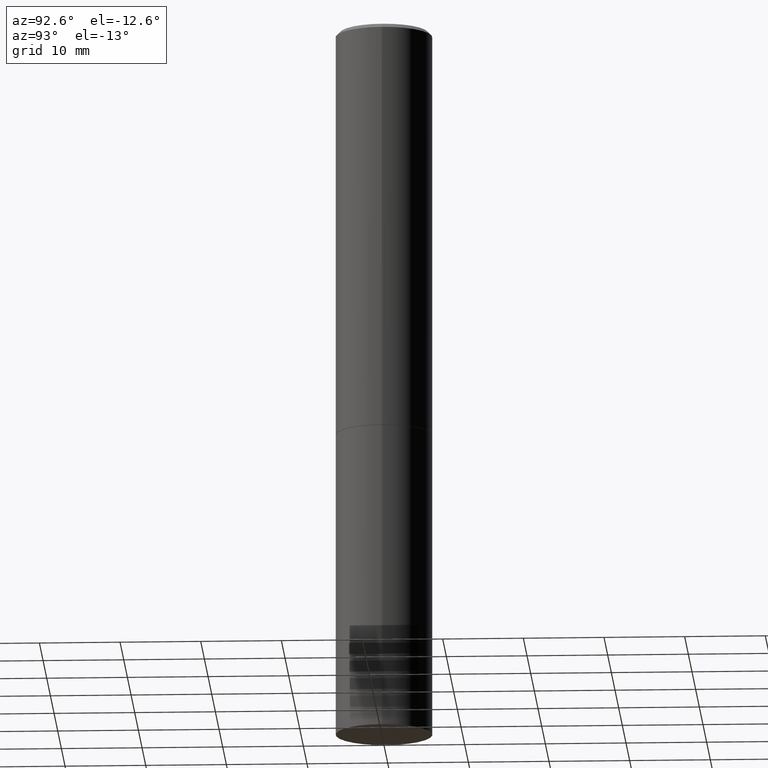
[diagram: clean part render]
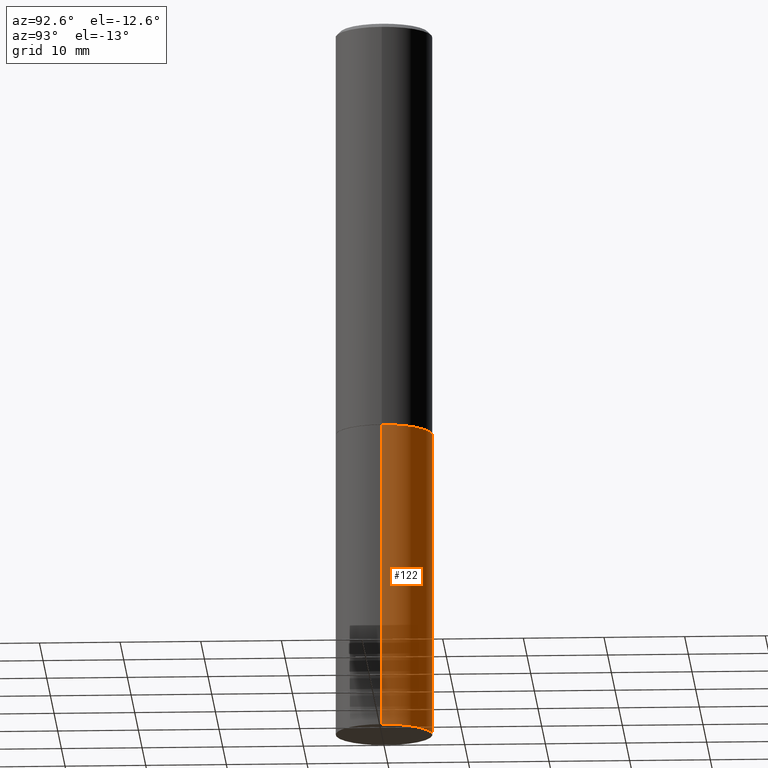
[diagram: same view with one face highlighted and labeled with its STEP entity id]
A machine part, auxiliary view. The second image highlights one B-rep face of the part: STEP entity #122.
In plain terms, the highlighted cylindrical surface (partial cylindrical patch) has radius 5.9995 mm, axis along (-0, 0, 1).
Its self-contained STEP definition (entity closure, byte-faithful):
#7 = EDGE_CURVE ( 'NONE', #203, #261, #55, .T. ) ;
#20 = VECTOR ( 'NONE', #278, 39.37007874015748143 ) ;
#40 = FACE_OUTER_BOUND ( 'NONE', #65, .T. ) ;
#42 = LINE ( 'NONE', #95, #150 ) ;
#48 = DIRECTION ( 'NONE',  ( 1.000000000000000000, -6.982962677686269077E-15, 0.000000000000000000 ) ) ;
#51 = DIRECTION ( 'NONE',  ( -2.445468806185136597E-29, 3.491481338843145583E-15, 1.000000000000000000 ) ) ;
#55 = CIRCLE ( 'NONE', #266, 0.2361999999999999933 ) ;
#65 = EDGE_LOOP ( 'NONE', ( #286, #171, #265, #313 ) ) ;
#70 = CARTESIAN_POINT ( 'NONE',  ( 0.000000000000000000, 0.000000000000000000, 0.000000000000000000 ) ) ;
#80 = EDGE_CURVE ( 'NONE', #261, #237, #42, .T. ) ;
#95 = CARTESIAN_POINT ( 'NONE',  ( -0.2361999999999999933, 1.678301941865356591E-15, -1.161852468318208757E-29 ) ) ;
#98 = CIRCLE ( 'NONE', #109, 0.2361999999999999933 ) ;
#99 = CARTESIAN_POINT ( 'NONE',  ( 8.568678149992099474E-29, -1.223380146317249786E-14, -3.503899999999999793 ) ) ;
#101 = DIRECTION ( 'NONE',  ( -2.445468806185136597E-29, 3.491481338843145583E-15, 1.000000000000000000 ) ) ;
#109 = AXIS2_PLACEMENT_3D ( 'NONE', #362, #51, #48 ) ;
#122 = ADVANCED_FACE ( 'NONE', ( #40 ), #355, .T. ) ;
#150 = VECTOR ( 'NONE', #271, 39.37007874015748143 ) ;
#171 = ORIENTED_EDGE ( 'NONE', *, *, #80, .T. ) ;
#186 = CARTESIAN_POINT ( 'NONE',  ( 0.2361999999999999933, -1.649375784469496131E-15, 1.151752954443000088E-29 ) ) ;
#189 = CARTESIAN_POINT ( 'NONE',  ( 0.2361999999999999933, -8.659572016598763935E-15, -2.007800000000000029 ) ) ;
#203 = VERTEX_POINT ( 'NONE', #249 ) ;
#212 = DIRECTION ( 'NONE',  ( 1.000000000000000000, -6.982962677686265133E-15, 0.000000000000000000 ) ) ;
#217 = EDGE_CURVE ( 'NONE', #203, #311, #218, .T. ) ;
#218 = LINE ( 'NONE', #186, #20 ) ;
#224 = CARTESIAN_POINT ( 'NONE',  ( -0.2361999999999999933, -7.943696905785525451E-15, -3.503899999999999793 ) ) ;
#237 = VERTEX_POINT ( 'NONE', #245 ) ;
#245 = CARTESIAN_POINT ( 'NONE',  ( -0.2361999999999999933, -7.943696905785525451E-15, -2.007800000000000029 ) ) ;
#249 = CARTESIAN_POINT ( 'NONE',  ( 0.2361999999999999933, -1.388317724764199281E-14, -3.503899999999999793 ) ) ;
#257 = EDGE_CURVE ( 'NONE', #311, #237, #98, .T. ) ;
#261 = VERTEX_POINT ( 'NONE', #224 ) ;
#265 = ORIENTED_EDGE ( 'NONE', *, *, #257, .F. ) ;
#266 = AXIS2_PLACEMENT_3D ( 'NONE', #99, #101, #212 ) ;
#269 = DIRECTION ( 'NONE',  ( 1.000000000000000000, -6.982962677686266711E-15, 4.876176775795936353E-29 ) ) ;
#271 = DIRECTION ( 'NONE',  ( -2.445468806185136877E-29, 3.491481338843145188E-15, 1.000000000000000000 ) ) ;
#278 = DIRECTION ( 'NONE',  ( -2.445468806185136877E-29, 3.491481338843145188E-15, 1.000000000000000000 ) ) ;
#281 = AXIS2_PLACEMENT_3D ( 'NONE', #70, #327, #269 ) ;
#286 = ORIENTED_EDGE ( 'NONE', *, *, #7, .T. ) ;
#311 = VERTEX_POINT ( 'NONE', #189 ) ;
#313 = ORIENTED_EDGE ( 'NONE', *, *, #217, .F. ) ;
#327 = DIRECTION ( 'NONE',  ( -2.445468806185136597E-29, 3.491481338843145583E-15, 1.000000000000000000 ) ) ;
#355 = CYLINDRICAL_SURFACE ( 'NONE', #281, 0.2361999999999999933 ) ;
#362 = CARTESIAN_POINT ( 'NONE',  ( 4.910012269058516525E-29, -7.010196232129267410E-15, -2.007800000000000029 ) ) ;